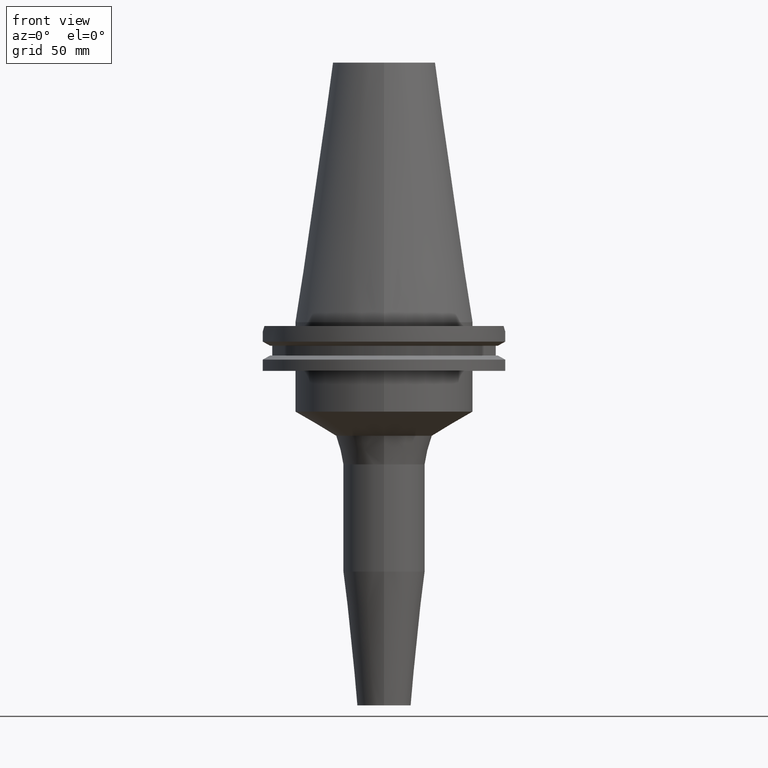
[diagram: clean part render]
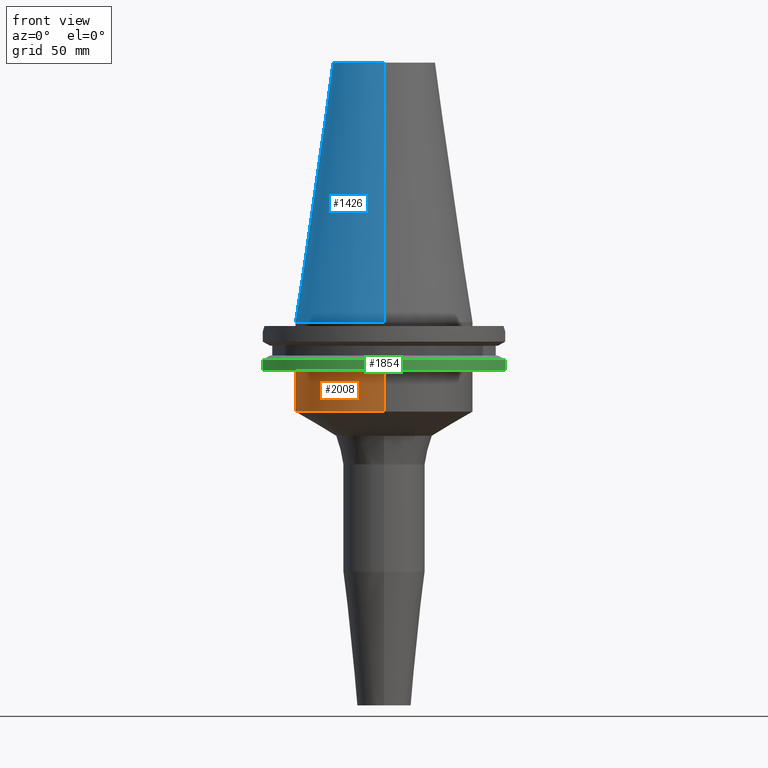
[diagram: same view with three faces highlighted in distinct colors, each labeled with its STEP entity id]
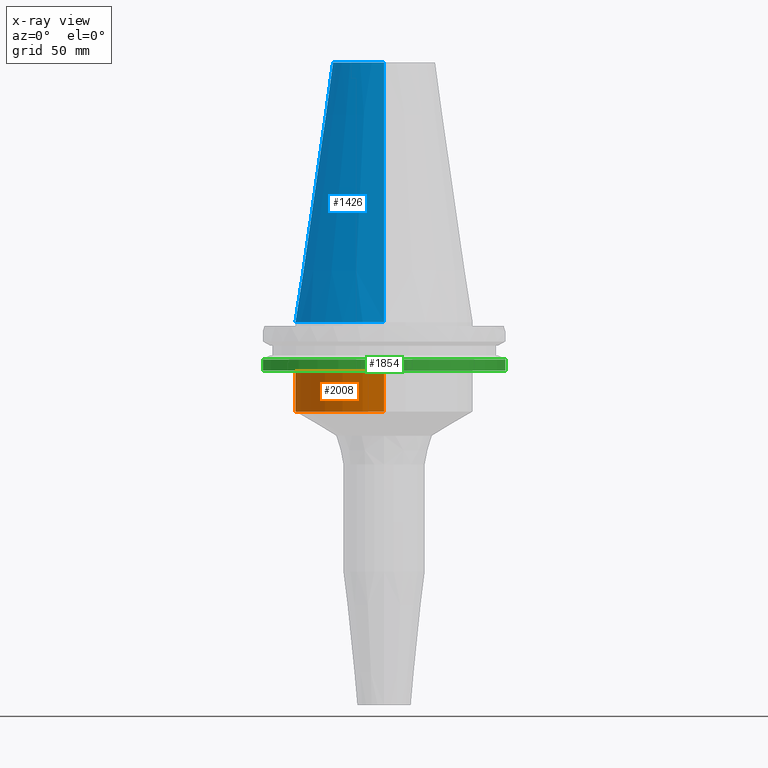
[diagram: x-ray of the same camera — body ghosted, the three highlighted faces saturated]
A machine part, front view with three faces highlighted in distinct colors.
The next image is the same camera in x-ray (body ghosted, the three faces saturated) — at least one of them is partly hidden behind the body in this view.
Their STEP definitions:

[orange] entity #2008 — the highlighted cylindrical surface (partial cylindrical patch) has radius 34.925 mm, axis along (0, 0, -1).
#251=CARTESIAN_POINT('',(0.E0,1.398301715266E-14,-1.905E1));
#252=DIRECTION('',(0.E0,0.E0,-1.E0));
#253=DIRECTION('',(0.E0,-1.E0,0.E0));
#254=AXIS2_PLACEMENT_3D('',#251,#252,#253);
#848=DIRECTION('',(0.E0,6.325835014291E-14,-1.E0));
#849=VECTOR('',#848,1.595E1);
#850=CARTESIAN_POINT('',(0.E0,-3.4925E1,-1.905E1));
#851=LINE('',#850,#849);
#855=DIRECTION('',(0.E0,-6.414931282098E-14,-1.E0));
#856=VECTOR('',#855,1.595E1);
#857=CARTESIAN_POINT('',(0.E0,3.4925E1,-1.905E1));
#858=LINE('',#857,#856);
#877=CARTESIAN_POINT('',(0.E0,0.E0,-3.5E1));
#878=DIRECTION('',(0.E0,0.E0,1.E0));
#879=DIRECTION('',(0.E0,1.E0,0.E0));
#880=AXIS2_PLACEMENT_3D('',#877,#878,#879);
#1252=CARTESIAN_POINT('',(0.E0,3.4925E1,-3.5E1));
#1253=VERTEX_POINT('',#1252);
#1254=CARTESIAN_POINT('',(0.E0,-3.4925E1,-3.5E1));
#1255=VERTEX_POINT('',#1254);
#1256=CARTESIAN_POINT('',(0.E0,3.4925E1,-1.905E1));
#1257=VERTEX_POINT('',#1256);
#1258=CARTESIAN_POINT('',(0.E0,-3.4925E1,-1.905E1));
#1259=VERTEX_POINT('',#1258);
#1994=CARTESIAN_POINT('',(0.E0,1.398301715266E-14,1.1418E2));
#1995=DIRECTION('',(0.E0,0.E0,-1.E0));
#1996=DIRECTION('',(0.E0,-1.E0,0.E0));
#1997=AXIS2_PLACEMENT_3D('',#1994,#1995,#1996);
#1998=CYLINDRICAL_SURFACE('',#1997,3.4925E1);
#2000=ORIENTED_EDGE('',*,*,#1999,.F.);
#2001=ORIENTED_EDGE('',*,*,#1545,.F.);
#2003=ORIENTED_EDGE('',*,*,#2002,.T.);
#2005=ORIENTED_EDGE('',*,*,#2004,.F.);
#2006=EDGE_LOOP('',(#2000,#2001,#2003,#2005));
#2007=FACE_OUTER_BOUND('',#2006,.F.);
#255=CIRCLE('',#254,3.4925E1);
#881=CIRCLE('',#880,3.4925E1);
#1545=EDGE_CURVE('',#1259,#1257,#255,.T.);
#1999=EDGE_CURVE('',#1257,#1253,#858,.T.);
#2002=EDGE_CURVE('',#1259,#1255,#851,.T.);
#2004=EDGE_CURVE('',#1253,#1255,#881,.T.);
#2008=ADVANCED_FACE('',(#2007),#1998,.T.);

[blue] entity #1426 — the highlighted conical surface has half-angle 8.297 deg.
#17=CARTESIAN_POINT('',(0.E0,0.E0,1.016E2));
#18=DIRECTION('',(0.E0,0.E0,-1.E0));
#19=DIRECTION('',(0.E0,-1.E0,0.E0));
#20=AXIS2_PLACEMENT_3D('',#17,#18,#19);
#50=DIRECTION('',(0.E0,-1.443069799457E-1,-9.895329683942E-1));
#51=VECTOR('',#50,1.026746993229E2);
#52=CARTESIAN_POINT('',(0.E0,-2.010832422387E1,1.016E2));
#53=LINE('',#52,#51);
#57=CARTESIAN_POINT('',(0.E0,0.E0,8.242295734817E-13));
#58=DIRECTION('',(0.E0,0.E0,-1.E0));
#59=DIRECTION('',(0.E0,-1.E0,0.E0));
#60=AXIS2_PLACEMENT_3D('',#57,#58,#59);
#65=DIRECTION('',(0.E0,1.443069799457E-1,-9.895329683942E-1));
#66=VECTOR('',#65,1.026746993229E2);
#67=CARTESIAN_POINT('',(0.E0,2.010832422387E1,1.016E2));
#68=LINE('',#67,#66);
#1196=CARTESIAN_POINT('',(0.E0,-2.010832422388E1,1.016E2));
#1197=CARTESIAN_POINT('',(0.E0,2.010832422388E1,1.016E2));
#1198=VERTEX_POINT('',#1196);
#1199=VERTEX_POINT('',#1197);
#1386=CARTESIAN_POINT('',(0.E0,3.4925E1,4.689582056017E-13));
#1387=VERTEX_POINT('',#1386);
#1388=CARTESIAN_POINT('',(0.E0,-3.4925E1,4.689582056017E-13));
#1389=VERTEX_POINT('',#1388);
#1412=CARTESIAN_POINT('',(0.E0,0.E0,5.08E1));
#1413=DIRECTION('',(0.E0,0.E0,-1.E0));
#1414=DIRECTION('',(0.E0,-1.E0,0.E0));
#1415=AXIS2_PLACEMENT_3D('',#1412,#1413,#1414);
#1416=CONICAL_SURFACE('',#1415,2.751666211194E1,8.29715E0);
#1418=ORIENTED_EDGE('',*,*,#1417,.F.);
#1419=ORIENTED_EDGE('',*,*,#1399,.F.);
#1421=ORIENTED_EDGE('',*,*,#1420,.T.);
#1423=ORIENTED_EDGE('',*,*,#1422,.T.);
#1424=EDGE_LOOP('',(#1418,#1419,#1421,#1423));
#1425=FACE_OUTER_BOUND('',#1424,.F.);
#21=CIRCLE('',#20,2.010832422388E1);
#61=CIRCLE('',#60,3.4925E1);
#1399=EDGE_CURVE('',#1198,#1199,#21,.T.);
#1417=EDGE_CURVE('',#1199,#1387,#68,.T.);
#1420=EDGE_CURVE('',#1198,#1389,#53,.T.);
#1422=EDGE_CURVE('',#1389,#1387,#61,.T.);
#1426=ADVANCED_FACE('',(#1425),#1416,.T.);

[green] entity #1854 — the highlighted cylindrical surface (partial cylindrical patch) has radius 49.2125 mm, axis along (0, 0, -1).
#235=CARTESIAN_POINT('',(0.E0,1.398301715266E-14,-1.905E1));
#236=DIRECTION('',(0.E0,0.E0,1.E0));
#237=DIRECTION('',(-9.647287063661E-1,-2.632461264923E-1,0.E0));
#238=AXIS2_PLACEMENT_3D('',#235,#236,#237);
#243=CARTESIAN_POINT('',(0.E0,1.398301715266E-14,-1.905E1));
#244=DIRECTION('',(0.E0,0.E0,1.E0));
#245=DIRECTION('',(0.E0,-1.E0,0.E0));
#246=AXIS2_PLACEMENT_3D('',#243,#244,#245);
#626=DIRECTION('',(-1.228324721565E-13,4.767839379758E-14,-1.E0));
#627=VECTOR('',#626,4.396333230921E0);
#628=CARTESIAN_POINT('',(4.747671146204E1,-1.2955E1,-1.465366676908E1));
#629=LINE('',#628,#627);
#633=DIRECTION('',(-1.341459893288E-13,-4.727433961285E-14,1.E0));
#634=VECTOR('',#633,4.396333230921E0);
#635=CARTESIAN_POINT('',(-4.747671146204E1,-1.2955E1,-1.905E1));
#636=LINE('',#635,#634);
#792=CARTESIAN_POINT('',(0.E0,0.E0,-1.465366676908E1));
#793=DIRECTION('',(0.E0,0.E0,-1.E0));
#794=DIRECTION('',(9.647287063661E-1,-2.632461264923E-1,0.E0));
#795=AXIS2_PLACEMENT_3D('',#792,#793,#794);
#800=CARTESIAN_POINT('',(0.E0,0.E0,-1.465366676908E1));
#801=DIRECTION('',(0.E0,0.E0,-1.E0));
#802=DIRECTION('',(0.E0,-1.E0,0.E0));
#803=AXIS2_PLACEMENT_3D('',#800,#801,#802);
#1274=CARTESIAN_POINT('',(-4.747671146204E1,-1.2955E1,-1.905E1));
#1275=VERTEX_POINT('',#1274);
#1276=CARTESIAN_POINT('',(0.E0,-4.92125E1,-1.905E1));
#1277=CARTESIAN_POINT('',(4.747671146204E1,-1.2955E1,-1.905E1));
#1278=VERTEX_POINT('',#1276);
#1279=VERTEX_POINT('',#1277);
#1288=CARTESIAN_POINT('',(4.747671146204E1,-1.2955E1,-1.465366676908E1));
#1289=VERTEX_POINT('',#1288);
#1300=CARTESIAN_POINT('',(-4.747671146204E1,-1.2955E1,-1.465366676908E1));
#1301=VERTEX_POINT('',#1300);
#1302=CARTESIAN_POINT('',(0.E0,-4.92125E1,-1.465366676908E1));
#1303=VERTEX_POINT('',#1302);
#1838=CARTESIAN_POINT('',(0.E0,1.398301715266E-14,1.1418E2));
#1839=DIRECTION('',(0.E0,0.E0,-1.E0));
#1840=DIRECTION('',(0.E0,-1.E0,0.E0));
#1841=AXIS2_PLACEMENT_3D('',#1838,#1839,#1840);
#1842=CYLINDRICAL_SURFACE('',#1841,4.92125E1);
#1843=ORIENTED_EDGE('',*,*,#1820,.T.);
#1844=ORIENTED_EDGE('',*,*,#1539,.F.);
#1845=ORIENTED_EDGE('',*,*,#1537,.F.);
#1847=ORIENTED_EDGE('',*,*,#1846,.T.);
#1849=ORIENTED_EDGE('',*,*,#1848,.F.);
#1851=ORIENTED_EDGE('',*,*,#1850,.F.);
#1852=EDGE_LOOP('',(#1843,#1844,#1845,#1847,#1849,#1851));
#1853=FACE_OUTER_BOUND('',#1852,.F.);
#239=CIRCLE('',#238,4.92125E1);
#247=CIRCLE('',#246,4.92125E1);
#796=CIRCLE('',#795,4.92125E1);
#804=CIRCLE('',#803,4.92125E1);
#1537=EDGE_CURVE('',#1275,#1278,#239,.T.);
#1539=EDGE_CURVE('',#1278,#1279,#247,.T.);
#1820=EDGE_CURVE('',#1289,#1279,#629,.T.);
#1846=EDGE_CURVE('',#1275,#1301,#636,.T.);
#1848=EDGE_CURVE('',#1303,#1301,#804,.T.);
#1850=EDGE_CURVE('',#1289,#1303,#796,.T.);
#1854=ADVANCED_FACE('',(#1853),#1842,.T.);